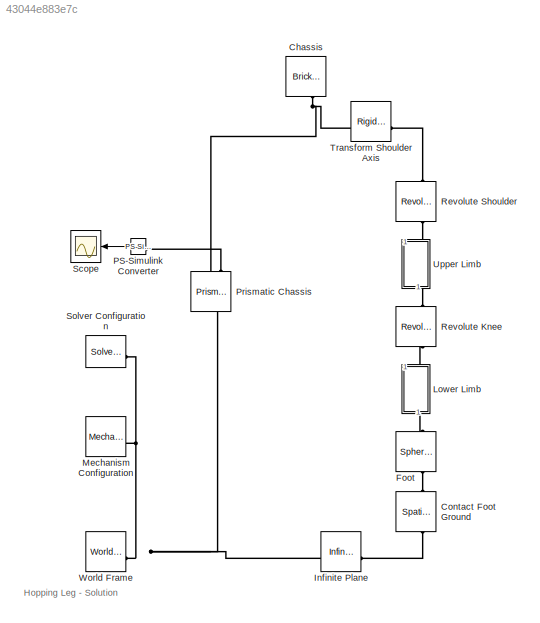
MODEL slx_43044e883e7c
KIND model
CONFIG AbsTol = 1e-3
CONFIG EnableMultiTasking = on
CONFIG FixedStep = auto
CONFIG MaxStep = auto
CONFIG MinStep = auto
CONFIG RelTol = 1e-3
CONFIG SampleTimeConstraint = Unconstrained
CONFIG SolverName = ode23t
CONFIG StartTime = 0.0
CONFIG StopTime = 10.0
BLOCK [Reference] Chassis  REF=sm_lib/Body Elements/Brick Solid
  NameLocation = left
  SourceBlock = sm_lib/Body Elements/Brick Solid
  SourceType = Brick Solid
BLOCK [Reference] Contact Foot Ground  REF=sm_lib/Forces and
Torques/Spatial
Contact Force
  NameLocation = right
  SourceBlock = sm_lib/Forces and\nTorques/Spatial\nContact Force
  SourceType = Spatial\nContact Force
BLOCK [Reference] Foot  REF=sm_lib/Body Elements/Spherical Solid
  NameLocation = left
  SourceBlock = sm_lib/Body Elements/Spherical Solid
  SourceType = Spherical Solid
BLOCK [Reference] Infinite Plane  REF=sm_lib/Curves and Surfaces/Infinite Plane
  SourceBlock = sm_lib/Curves and Surfaces/Infinite Plane
  SourceType = Infinite Plane
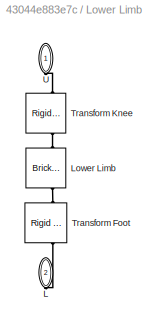
BLOCK [SubSystem] Lower Limb
  NameLocation = left
BLOCK [PMIOPort] Lower Limb/L
  NameLocation = left
  Port = 2
  Side = Right
BLOCK [Reference] Lower Limb/Lower Limb  REF=sm_lib/Body Elements/Brick Solid
  NameLocation = left
  SourceBlock = sm_lib/Body Elements/Brick Solid
  SourceType = Brick Solid
BLOCK [Reference] Lower Limb/Transform Foot  REF=sm_lib/Frames and
Transforms/Rigid
Transform
  NameLocation = left
  SourceBlock = sm_lib/Frames and\nTransforms/Rigid\nTransform
  SourceType = Rigid\nTransform
BLOCK [Reference] Lower Limb/Transform Knee  REF=sm_lib/Frames and
Transforms/Rigid
Transform
  NameLocation = left
  SourceBlock = sm_lib/Frames and\nTransforms/Rigid\nTransform
  SourceType = Rigid\nTransform
BLOCK [PMIOPort] Lower Limb/U
  NameLocation = right
  Side = Left
BLOCK [Reference] Mechanism Configuration  REF=sm_lib/Utilities/Mechanism
Configuration
  SourceBlock = sm_lib/Utilities/Mechanism\nConfiguration
  SourceType = Mechanism\nConfiguration
BLOCK [Reference] PS-Simulink Converter  REF=nesl_utility/PS-Simulink
Converter
  NameLocation = top
  SourceBlock = nesl_utility/PS-Simulink\nConverter
  SourceType = PS-Simulink\nConverter
BLOCK [Reference] Prismatic Chassis  REF=sm_lib/Joints/Prismatic
Joint
  NameLocation = right
  SourceBlock = sm_lib/Joints/Prismatic\nJoint
  SourceType = Prismatic\nJoint
BLOCK [Reference] Revolute Knee  REF=sm_lib/Joints/Revolute Joint
  NameLocation = left
  SourceBlock = sm_lib/Joints/Revolute Joint
  SourceType = Revolute Joint
BLOCK [Reference] Revolute Shoulder  REF=sm_lib/Joints/Revolute Joint
  NameLocation = left
  SourceBlock = sm_lib/Joints/Revolute Joint
  SourceType = Revolute Joint
BLOCK [Scope] Scope
  Floating = off
  NumInputPorts = 1
  ScopeSpecificationString = Simulink.scopes.TimeScopeBlockCfg('CurrentConfiguration', extmgr.ConfigurationSet(extmgr.Configuration('Core','General UI',true),extmgr.Configuration('Core','Source UI',true),extmgr.Configuration('Sources','WiredSimulink',true),extmgr.Configuration('Visuals','Time Domain',true,'SerializedDisplays',{struct('MinYLimReal','0.30031','MaxYLimReal','0.52219','YLabelReal','','MinYLimMag','0.30031','MaxYL...<+1457ch>
BLOCK [Reference] Solver Configuration  REF=nesl_utility/Solver
Configuration
  SourceBlock = nesl_utility/Solver\nConfiguration
  SourceType = Solver\nConfiguration
BLOCK [Reference] Transform Shoulder Axis  REF=sm_lib/Frames and
Transforms/Rigid
Transform
  SourceBlock = sm_lib/Frames and\nTransforms/Rigid\nTransform
  SourceType = Rigid\nTransform
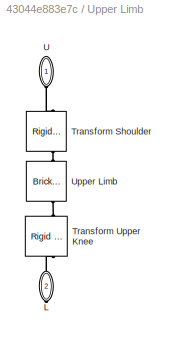
BLOCK [SubSystem] Upper Limb
  NameLocation = left
BLOCK [PMIOPort] Upper Limb/L
  NameLocation = left
  Port = 2
  Side = Right
BLOCK [Reference] Upper Limb/Transform Shoulder  REF=sm_lib/Frames and
Transforms/Rigid
Transform
  NameLocation = left
  SourceBlock = sm_lib/Frames and\nTransforms/Rigid\nTransform
  SourceType = Rigid\nTransform
BLOCK [Reference] Upper Limb/Transform Upper Knee  REF=sm_lib/Frames and
Transforms/Rigid
Transform
  NameLocation = left
  SourceBlock = sm_lib/Frames and\nTransforms/Rigid\nTransform
  SourceType = Rigid\nTransform
BLOCK [PMIOPort] Upper Limb/U
  NameLocation = left
  Side = Left
BLOCK [Reference] Upper Limb/Upper Limb  REF=sm_lib/Body Elements/Brick Solid
  NameLocation = left
  SourceBlock = sm_lib/Body Elements/Brick Solid
  SourceType = Brick Solid
BLOCK [Reference] World Frame  REF=sm_lib/Frames and
Transforms/World Frame
  SourceBlock = sm_lib/Frames and\nTransforms/World Frame
  SourceType = World Frame
ANNOTATION (root): Hopping Leg - Solution
LINE PS-Simulink Converter:1 -> Scope:1
PNET net1: Chassis:RConn1 -- Prismatic Chassis:RConn1 -- Transform Shoulder Axis:LConn1
PLINE Contact Foot Ground:LConn1 -- Foot:LConn1
PLINE Contact Foot Ground:RConn1 -- Infinite Plane:RConn1
PLINE Foot:RConn1 -- Lower Limb:RConn1
PNET net2: Infinite Plane:LConn1 -- Mechanism Configuration:RConn1 -- Prismatic Chassis:LConn1 -- Solver Configuration:RConn1 -- World Frame:RConn1
PLINE Lower Limb/L:RConn1 -- Lower Limb/Transform Foot:RConn1
PLINE Lower Limb/Lower Limb:LConn1 -- Lower Limb/Transform Knee:LConn1
PLINE Lower Limb/Lower Limb:RConn1 -- Lower Limb/Transform Foot:LConn1
PLINE Lower Limb/Transform Knee:RConn1 -- Lower Limb/U:RConn1
PLINE Lower Limb:LConn1 -- Revolute Knee:RConn1
PLINE PS-Simulink Converter:LConn1 -- Prismatic Chassis:RConn2
PLINE Revolute Knee:LConn1 -- Upper Limb:RConn1
PLINE Revolute Shoulder:LConn1 -- Transform Shoulder Axis:RConn1
PLINE Revolute Shoulder:RConn1 -- Upper Limb:LConn1
PLINE Upper Limb/L:RConn1 -- Upper Limb/Transform Upper Knee:RConn1
PLINE Upper Limb/Transform Shoulder:LConn1 -- Upper Limb/Upper Limb:LConn1
PLINE Upper Limb/Transform Shoulder:RConn1 -- Upper Limb/U:RConn1
PLINE Upper Limb/Transform Upper Knee:LConn1 -- Upper Limb/Upper Limb:RConn1
note: PNET lines group multi-terminal physical nets as a canonical sorted terminal list (undirected conserving connections); 2-terminal nets keep the pairwise PLINE form
